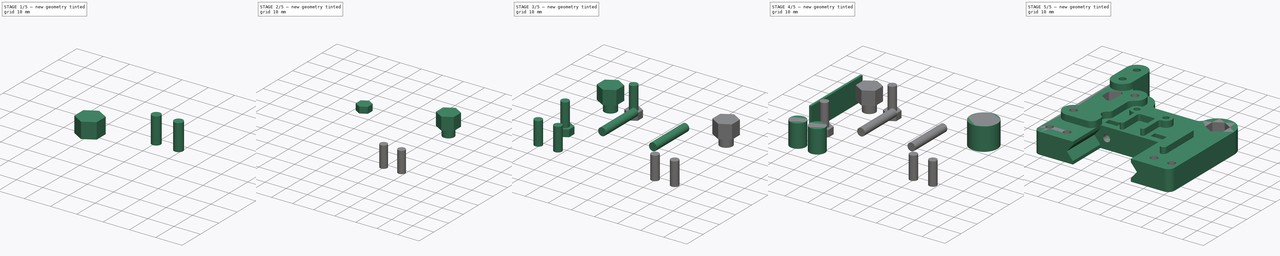
[diagram: build sequence overview — one tinted view per stage of 5, left to right]
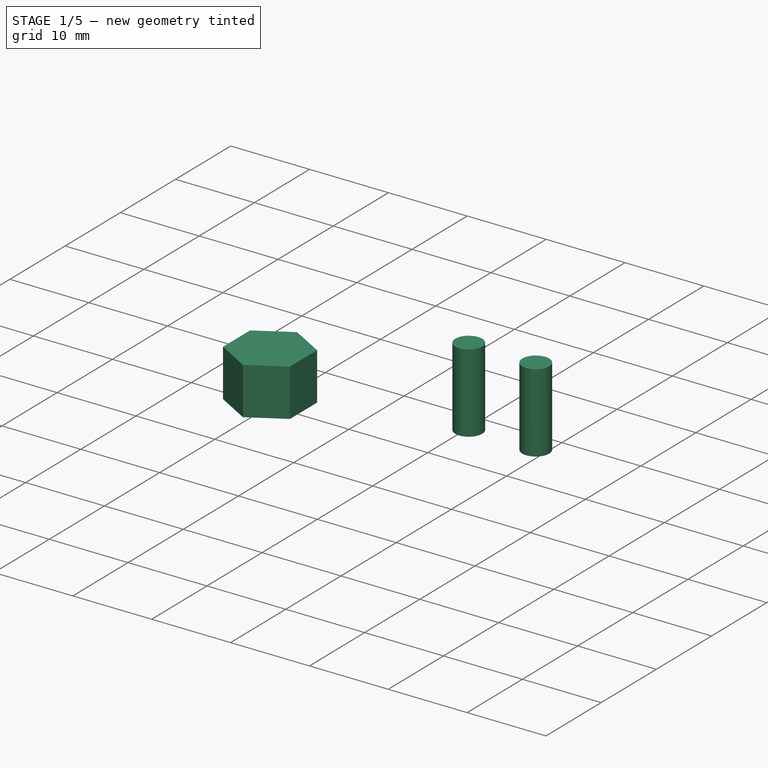
[diagram: stage 1 of 5 — iso view after this stage's code; geometry added in this stage tinted green]
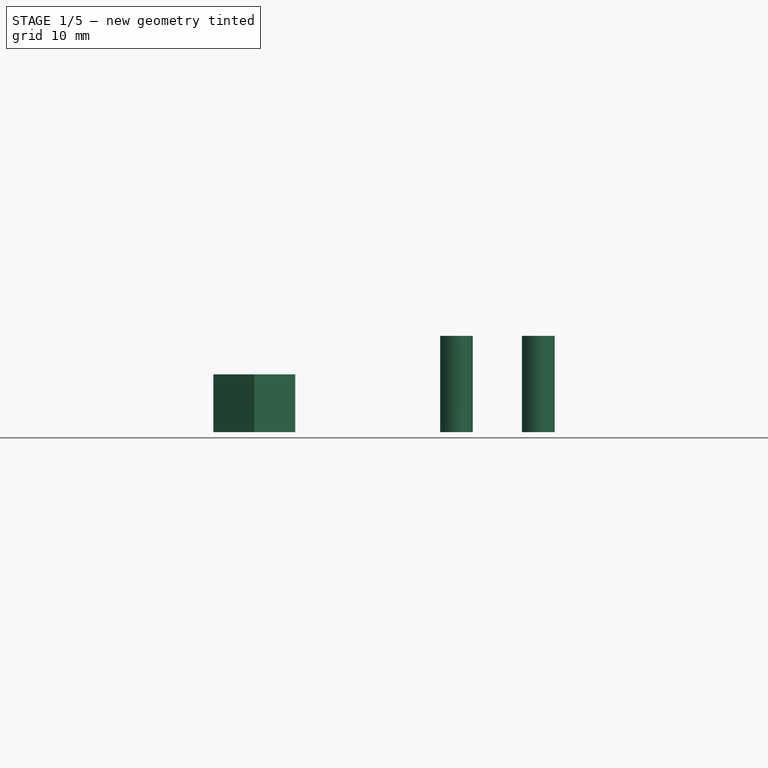
[diagram: stage 1 of 5 — front view after this stage's code; geometry added in this stage tinted green]
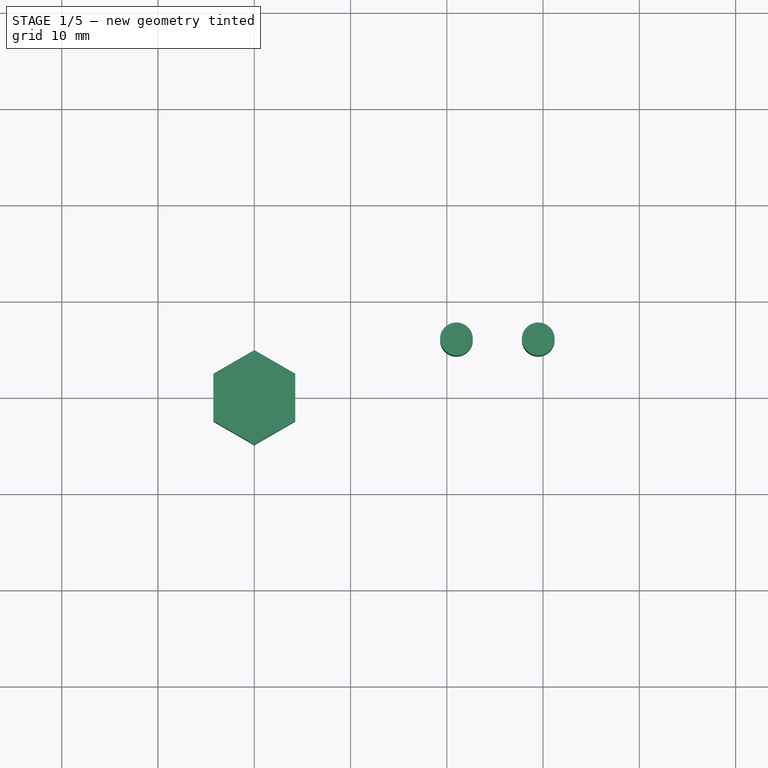
[diagram: stage 1 of 5 — top view after this stage's code; geometry added in this stage tinted green]
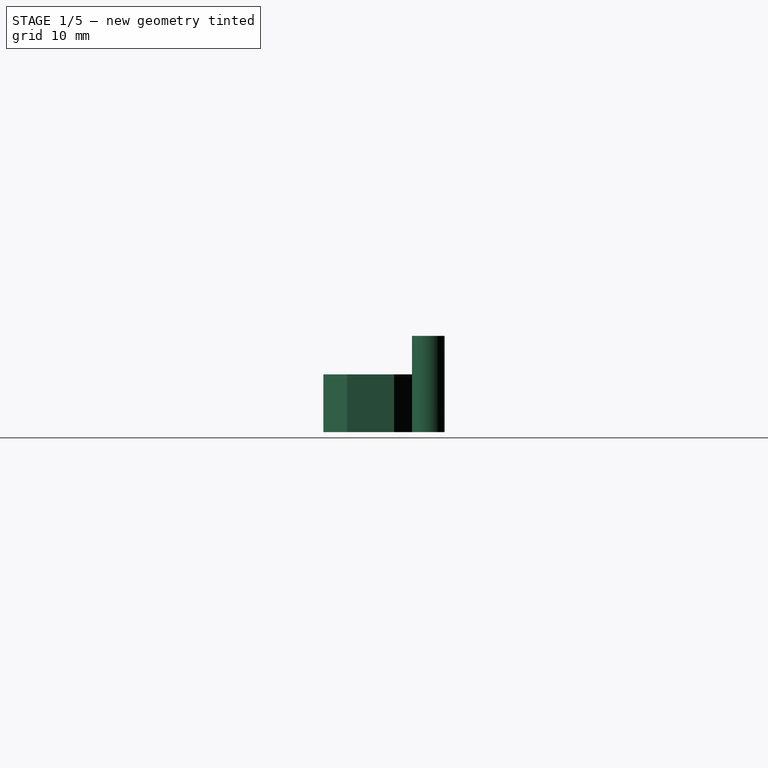
[diagram: stage 1 of 5 — right view after this stage's code; geometry added in this stage tinted green]
FCSTD DOCUMENT  (FreeCAD 0.18R14995 (Git))
Label: XCarriage
License: All rights reserved
LicenseURL: http://en.wikipedia.org/wiki/All_rights_reserved
objects: Part::Cylinder×9, Part::Mirroring×6, Part::MultiFuse×4, Sketcher::SketchObject×2, PartDesign::Pad×2, PartDesign::Body×2, Part::Feature×1, Part::Box×1, PartDesign::FeatureBase×1, Part::Cut×1, App::Part×1, Part::FeaturePython×1
note: 32 computed .brp shape members not serialized (recipe doc carries the construction recipe); baked Part::Feature solids carry a one-line shape summary decoded from their .brp

FEATURE [Sketcher::SketchObject] Sketch001  label="WN_BaseSketch"
  MapMode = 5
  Support = -> [XY_Plane002]
  sketch-geometry (7):
    g0: LineSegment StartX=4.25 StartY=-2.45374 StartZ=0 EndX=4.25 EndY=2.45374 EndZ=0
    g1: LineSegment StartX=4.25 StartY=2.45374 StartZ=0 EndX=0 EndY=4.90748 EndZ=0
    g2: LineSegment StartX=0 StartY=4.90748 StartZ=0 EndX=-4.25 EndY=2.45374 EndZ=0
    g3: LineSegment StartX=-4.25 StartY=2.45374 StartZ=0 EndX=-4.25 EndY=-2.45374 EndZ=0
    g4: LineSegment StartX=-4.25 StartY=-2.45374 StartZ=0 EndX=0 EndY=-4.90748 EndZ=0
    g5: LineSegment StartX=0 StartY=-4.90748 StartZ=0 EndX=4.25 EndY=-2.45374 EndZ=0
    g6: Circle [constr] CenterX=0 CenterY=0 CenterZ=0 NormalX=0 NormalY=0 NormalZ=1 AngleXU=0 Radius=4.90748
  constraints (16):
    c: Coincident(g0,g1)
    c: Coincident(g1,g2)
    c: Coincident(g2,g3)
    c: Coincident(g3,g4)
    c: Coincident(g4,g5)
    c: Coincident(g5,g0)
    c: Equal(g0, g1-g5) x5
    c: PointOnObject(g0,g6)
    c: PointOnObject(g1,g6)
    c: PointOnObject(g2,g6)
    c: PointOnObject(g3,g6)
    c: PointOnObject(g4,g6)
    c: PointOnObject(g5,g6)
    c: Coincident(g6,g-1)
    c: Vertical(g0)
    c: Distance(g2,g0) = 8.5
FEATURE [PartDesign::Pad] Pad001  label="WN_BasePad"
  Length = 6
  Length2 = 100
  Profile = -> Sketch001
  Type = 0
FEATURE [Part::Cylinder] Cylinder007  label="BeltClipCilinder2_I"
  Angle = 360
  AttacherType = Attacher::AttachEngine3D
  Height = 10
  Placement = pos=(-21,6,0) rot=(0,0,1;0rad)
  Radius = 1.7
FEATURE [Part::Cylinder] Cylinder008  label="BeltClipCilinder2_E"
  Angle = 360
  AttacherType = Attacher::AttachEngine3D
  Height = 10
  Placement = pos=(-29.5,6,0) rot=(0,0,1;0rad)
  Radius = 1.7
FEATURE [Part::MultiFuse] Fusion002  label="BeltClipFusion2"
  Shapes = -> [Cylinder007,Cylinder008]
FEATURE [Part::Mirroring] Part__Mirroring005  label="BeltClipFusion2_Mirror"
  Base = (0,0,0)
  Normal = (1,0,0)
  Source = -> Fusion002
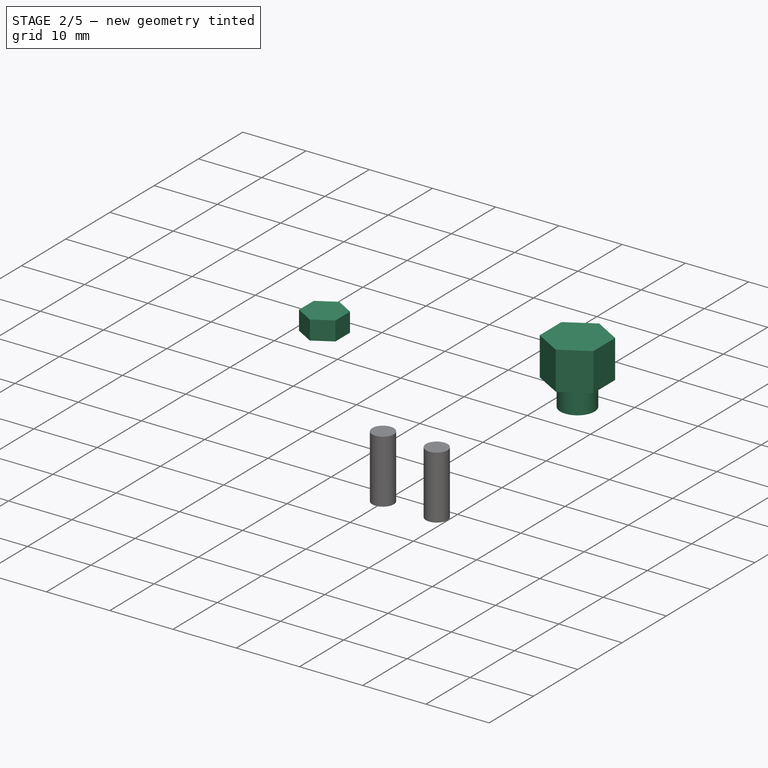
[diagram: stage 2 of 5 — iso view after this stage's code; geometry added in this stage tinted green]
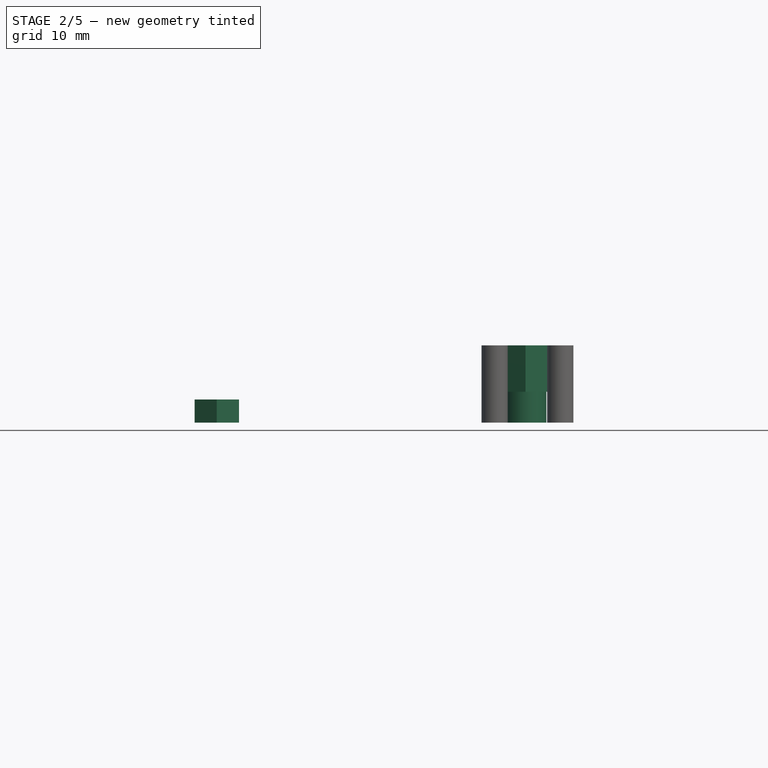
[diagram: stage 2 of 5 — front view after this stage's code; geometry added in this stage tinted green]
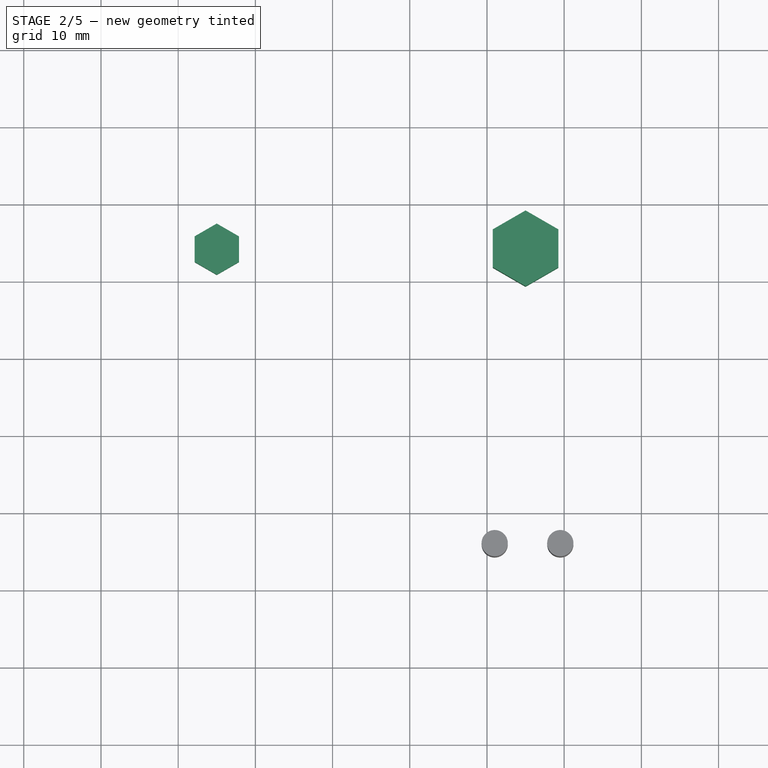
[diagram: stage 2 of 5 — top view after this stage's code; geometry added in this stage tinted green]
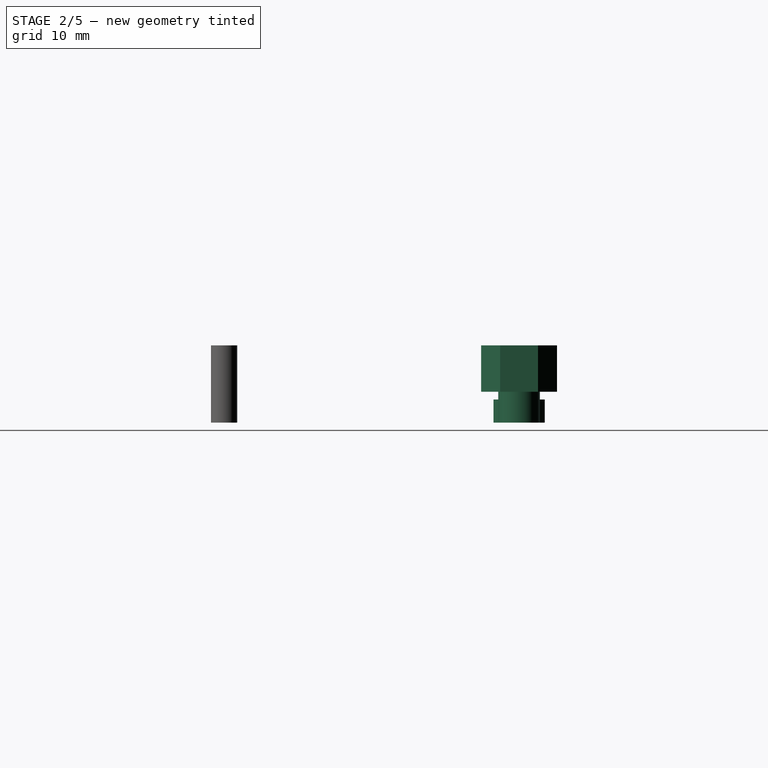
[diagram: stage 2 of 5 — right view after this stage's code; geometry added in this stage tinted green]
FEATURE [Sketcher::SketchObject] Sketch  label="SN_BaseSketch"
  MapMode = 5
  Support = -> [XY_Plane001]
  sketch-geometry (7):
    g0: LineSegment StartX=2.875 StartY=-1.65988 StartZ=0 EndX=2.875 EndY=1.65988 EndZ=0
    g1: LineSegment StartX=2.875 StartY=1.65988 StartZ=0 EndX=1.8e-11 EndY=3.31976 EndZ=0
    g2: LineSegment StartX=1.8e-11 StartY=3.31976 StartZ=0 EndX=-2.875 EndY=1.65988 EndZ=0
    g3: LineSegment StartX=-2.875 StartY=1.65988 StartZ=0 EndX=-2.875 EndY=-1.65988 EndZ=0
    g4: LineSegment StartX=-2.875 StartY=-1.65988 StartZ=0 EndX=2.5e-11 EndY=-3.31976 EndZ=0
    g5: LineSegment StartX=2.5e-11 StartY=-3.31976 StartZ=0 EndX=2.875 EndY=-1.65988 EndZ=0
    g6: Circle [constr] CenterX=0 CenterY=0 CenterZ=0 NormalX=0 NormalY=0 NormalZ=1 AngleXU=0 Radius=3.31976
  constraints (16):
    c: Coincident(g0,g1)
    c: Coincident(g1,g2)
    c: Coincident(g2,g3)
    c: Coincident(g3,g4)
    c: Coincident(g4,g5)
    c: Coincident(g5,g0)
    c: Equal(g0, g1-g5) x5
    c: PointOnObject(g0,g6)
    c: PointOnObject(g1,g6)
    c: PointOnObject(g2,g6)
    c: PointOnObject(g3,g6)
    c: PointOnObject(g4,g6)
    c: PointOnObject(g5,g6)
    c: Coincident(g6,g-1)
    c: Vertical(g0)
    c: Distance(g2,g0) = 5.75
FEATURE [PartDesign::Pad] Pad  label="SN_BasePad"
  Length = 3
  Length2 = 100
  Profile = -> Sketch
  Type = 0
FEATURE [PartDesign::Body] Body  label="ShroudNutBody"
  Group = -> [Sketch,Pad]
  Origin = -> Origin001
  Placement = pos=(-27,19,0) rot=(0,0,1;0rad)
  Tip = -> Pad
FEATURE [PartDesign::FeatureBase] Clone  label="ShroudNutClone"
  BaseFeature = -> Body
  Placement = pos=(-15,44.21,0) rot=(0,0,1;0rad)
FEATURE [Part::Cylinder] Cylinder006  label="WheelScrewCilinder"
  Angle = 360
  AttacherType = Attacher::AttachEngine3D
  Height = 10
  Placement = pos=(-25,44.2,0) rot=(0,0,1;0rad)
  Radius = 2.7
FEATURE [Part::Mirroring] Part__Mirroring003  label="WheelScrewCilinder_Mirror"
  Base = (0,0,0)
  Normal = (1,0,0)
  Source = -> Cylinder006
FEATURE [PartDesign::Body] Body001  label="WheelClipNutBody"
  Group = -> [Sketch001,Pad001]
  Origin = -> Origin002
  Placement = pos=(-25,44.2,4) rot=(0,0,1;0rad)
  Tip = -> Pad001
FEATURE [Part::Mirroring] Part__Mirroring004  label="WheelClipNutBody_Mirror"
  Base = (0,0,0)
  Normal = (1,0,0)
  Source = -> Body001
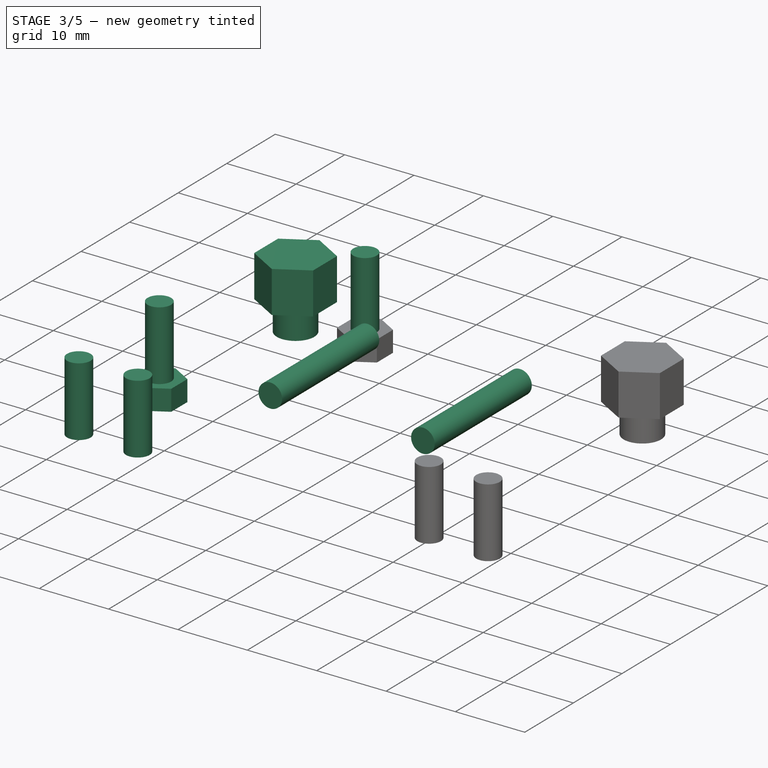
[diagram: stage 3 of 5 — iso view after this stage's code; geometry added in this stage tinted green]
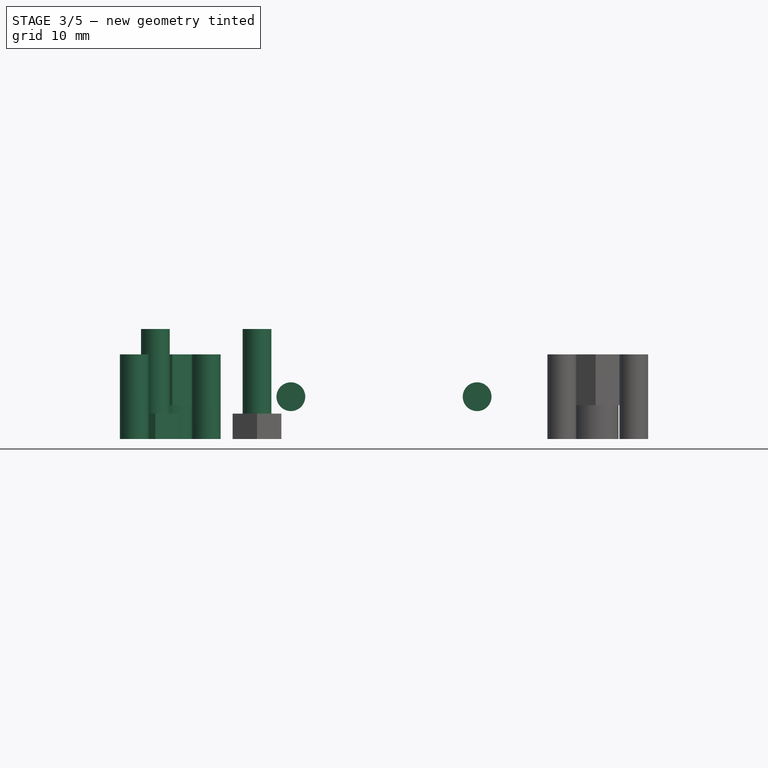
[diagram: stage 3 of 5 — front view after this stage's code; geometry added in this stage tinted green]
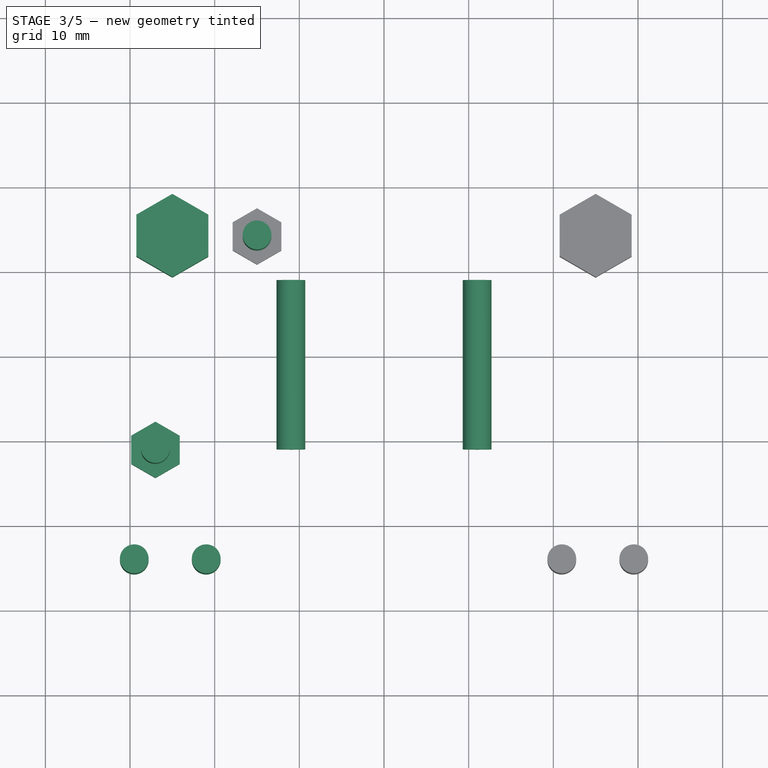
[diagram: stage 3 of 5 — top view after this stage's code; geometry added in this stage tinted green]
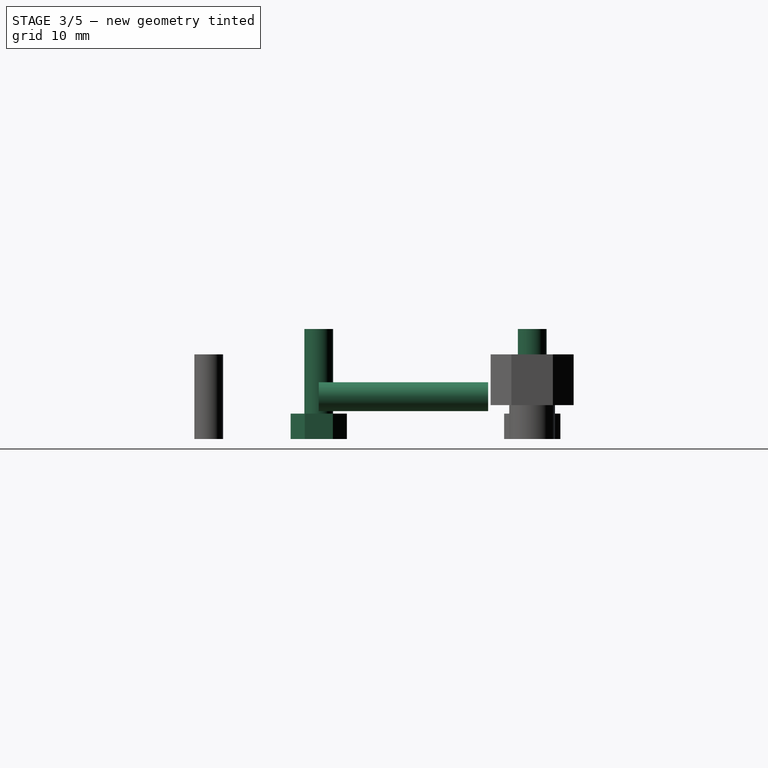
[diagram: stage 3 of 5 — right view after this stage's code; geometry added in this stage tinted green]
FEATURE [Part::Cylinder] Cylinder003  label="BottomScrewCilinder"
  Angle = 360
  AttacherType = Attacher::AttachEngine3D
  Height = 20
  Placement = pos=(-11,19,5) rot=(1,0,0;-1.5708rad)
  Radius = 1.7
FEATURE [Part::Mirroring] Part__Mirroring002  label="BottomScrewCilinder_Mirror"
  Base = (0,0,0)
  Normal = (1,0,0)
  Source = -> Cylinder003
FEATURE [Part::Cylinder] Cylinder004  label="ShroudScrewCilinder1"
  Angle = 360
  AttacherType = Attacher::AttachEngine3D
  Height = 13
  Placement = pos=(-27,19,0) rot=(0,0,1;0rad)
  Radius = 1.7
FEATURE [Part::Cylinder] Cylinder005  label="ShroudScrewCilinder2"
  Angle = 360
  AttacherType = Attacher::AttachEngine3D
  Height = 13
  Placement = pos=(-15,44.21,0) rot=(0,0,1;0rad)
  Radius = 1.7
FEATURE [Part::MultiFuse] Fusion003  label="CutsFusion"
  Shapes = -> [Fusion002,Part__Mirroring005,Body001,Part__Mirroring004,Cylinder006,Part__Mirroring003,Clone,Body,Cylinder005,Cylinder004,Cylinder003,Part__Mirroring002]
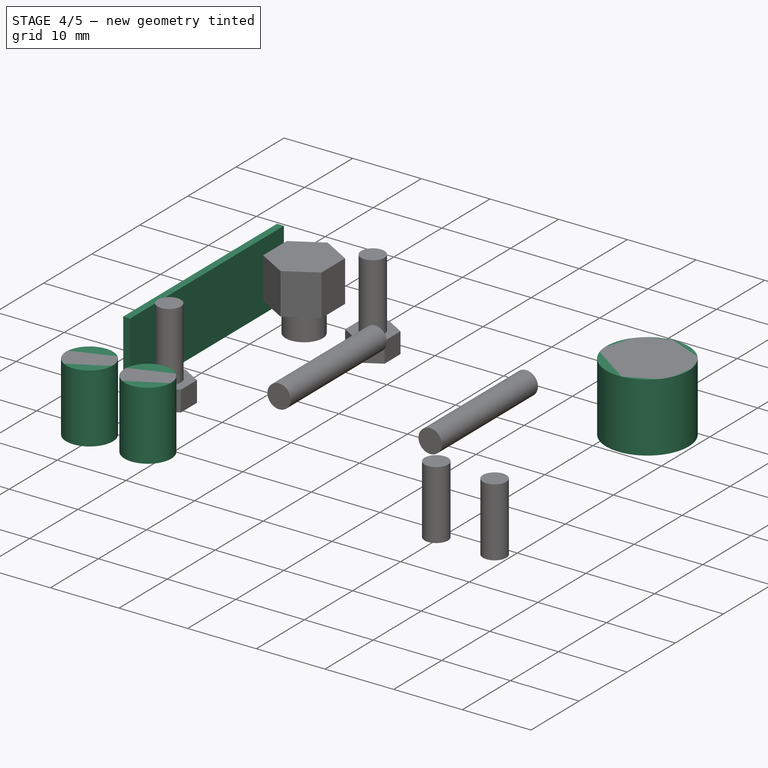
[diagram: stage 4 of 5 — iso view after this stage's code; geometry added in this stage tinted green]
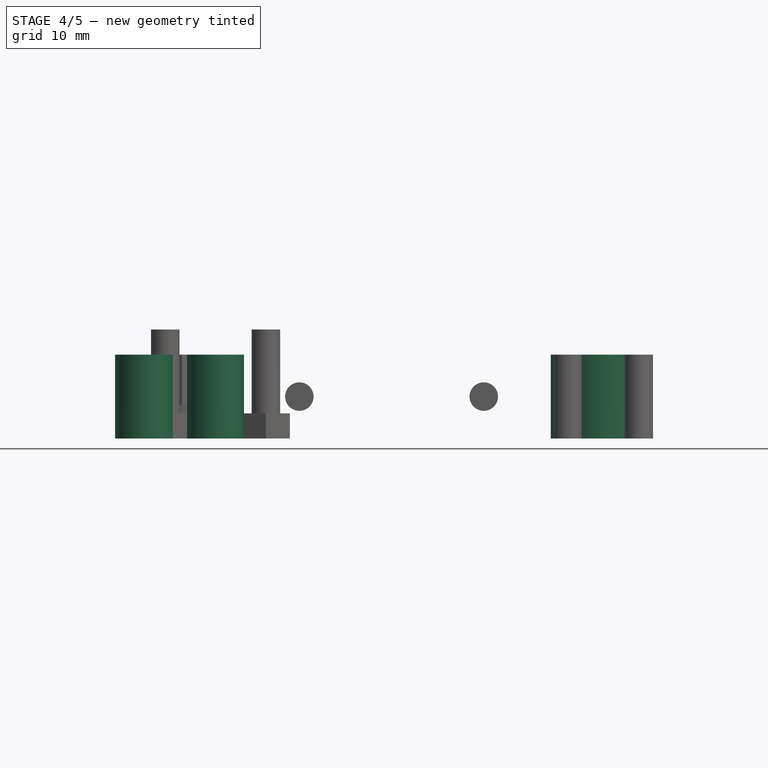
[diagram: stage 4 of 5 — front view after this stage's code; geometry added in this stage tinted green]
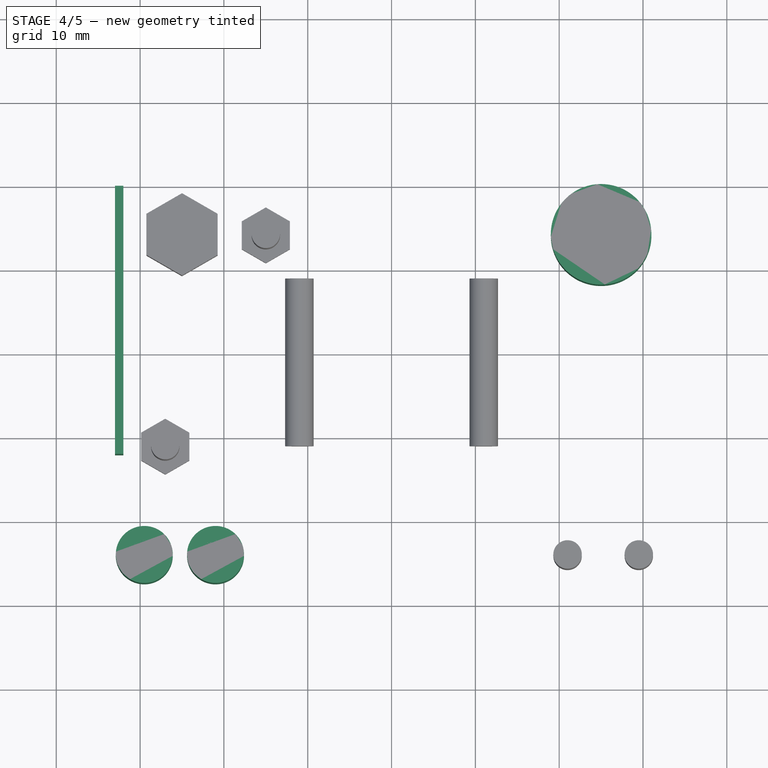
[diagram: stage 4 of 5 — top view after this stage's code; geometry added in this stage tinted green]
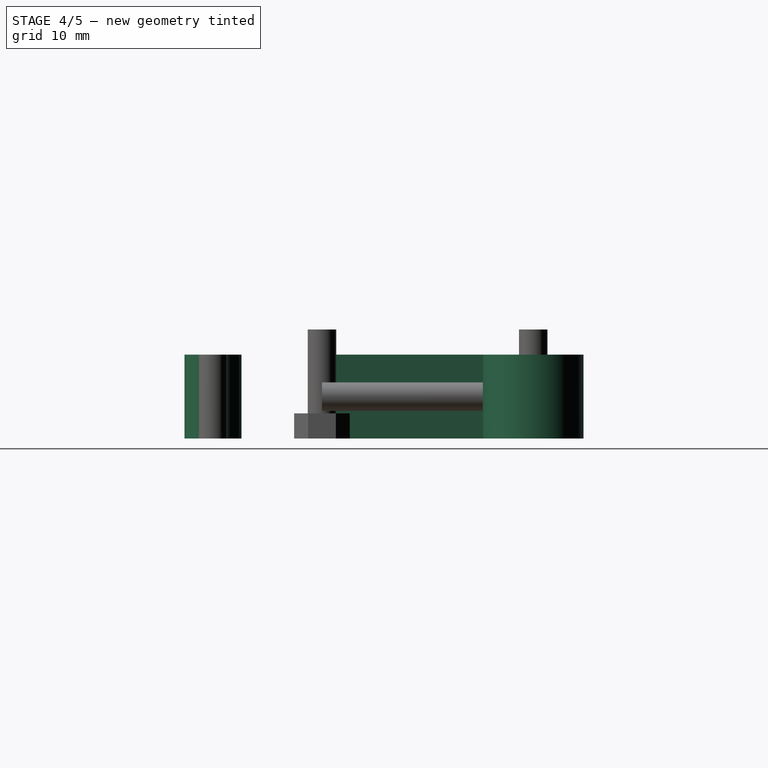
[diagram: stage 4 of 5 — right view after this stage's code; geometry added in this stage tinted green]
FEATURE [Part::Feature] E10_Carriage_nystao_with_BLtouch_V1_0001001_solid  label="BaseFeature"
  Placement = pos=(-33,0,0) rot=(0,0,1;0rad)
  shape: bbox 66 x 69.19 x 13 mm, 1855 faces (baked)
FEATURE [Part::Cylinder] Cylinder  label="BeltClipCilinder_I"
  Angle = 360
  AttacherType = Attacher::AttachEngine3D
  Height = 10
  Placement = pos=(-21,6,0) rot=(0,0,1;0rad)
  Radius = 3.4
FEATURE [Part::Cylinder] Cylinder001  label="BeltClipCilinder_E"
  Angle = 360
  AttacherType = Attacher::AttachEngine3D
  Height = 10
  Placement = pos=(-29.5,6,0) rot=(0,0,1;0rad)
  Radius = 3.4
FEATURE [Part::Cylinder] Cylinder002  label="WheelsClipCilinder"
  Angle = 360
  AttacherType = Attacher::AttachEngine3D
  Height = 10
  Placement = pos=(-25,44.2,0) rot=(0,0,1;0rad)
  Radius = 6
FEATURE [Part::Mirroring] Part__Mirroring001  label="WheelsClipCilinder_Mirror"
  Base = (0,0,0)
  Normal = (1,0,0)
  Source = -> Cylinder002
FEATURE [Part::Box] Box  label="TextRemovalCube"
  AttacherType = Attacher::AttachEngine3D
  Height = 10
  Length = 1
  Placement = pos=(-33,18,0) rot=(0,0,1;0rad)
  Width = 32
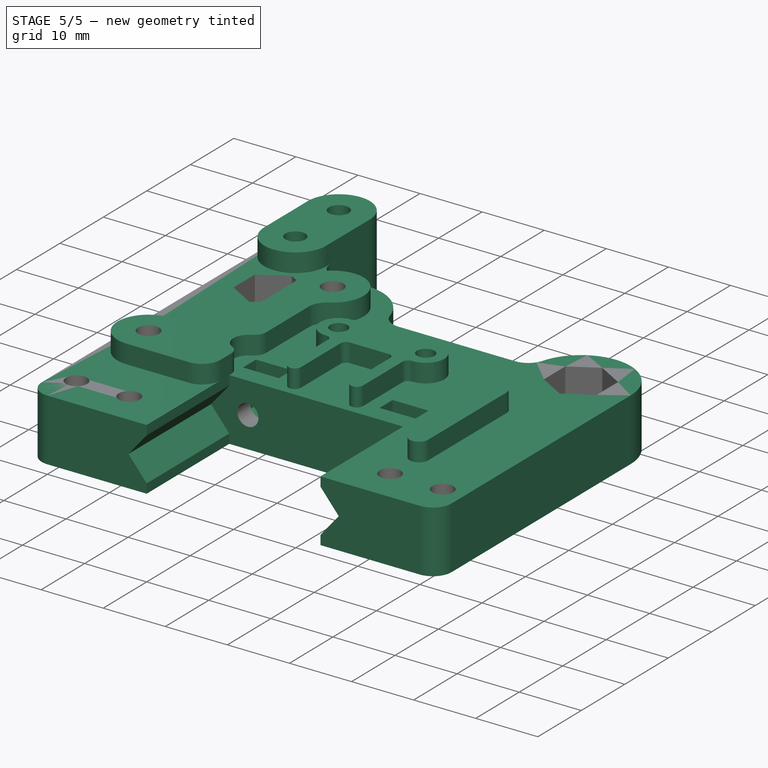
[diagram: stage 5 of 5 — iso view after this stage's code; geometry added in this stage tinted green]
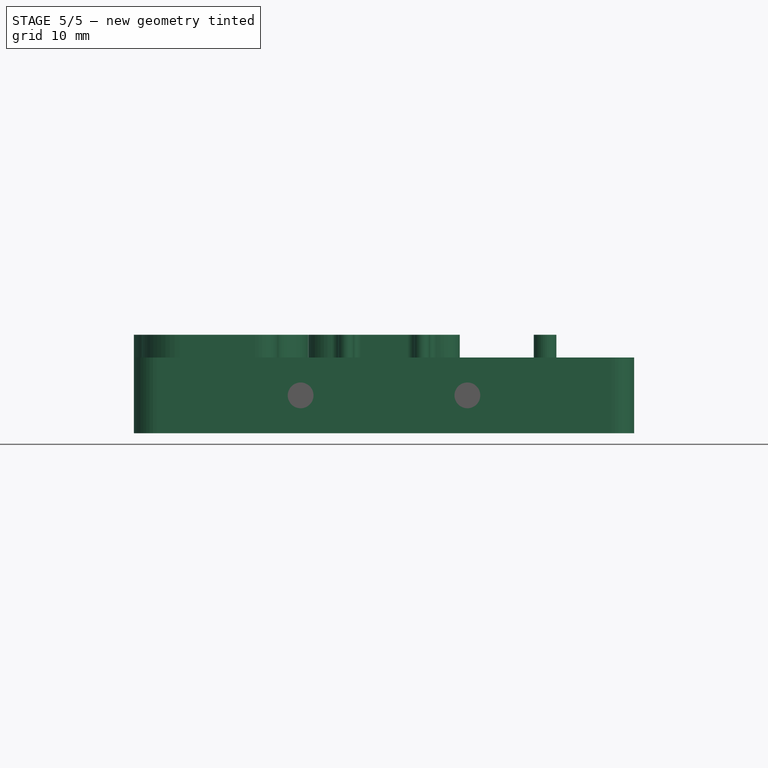
[diagram: stage 5 of 5 — front view after this stage's code; geometry added in this stage tinted green]
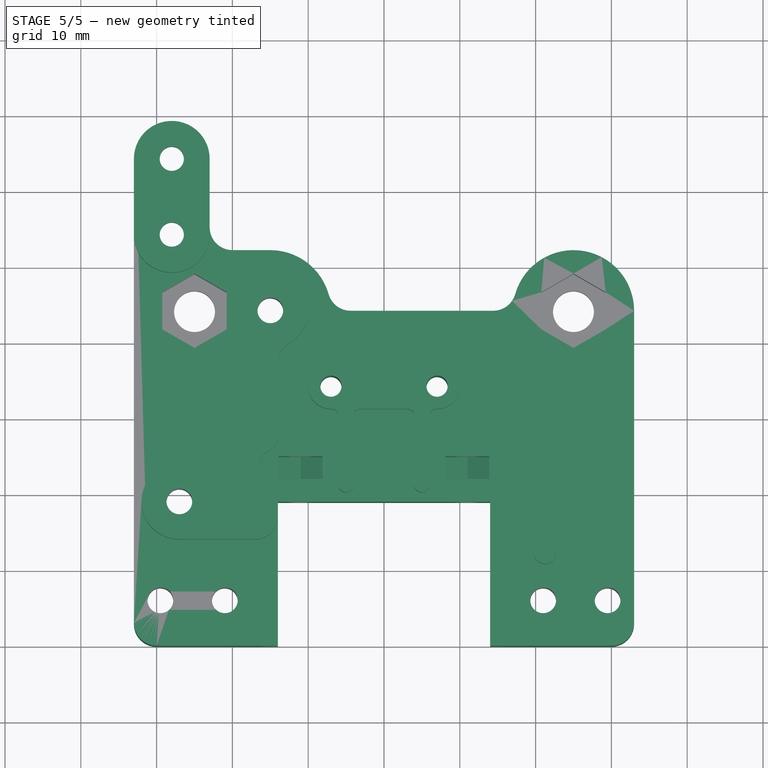
[diagram: stage 5 of 5 — top view after this stage's code; geometry added in this stage tinted green]
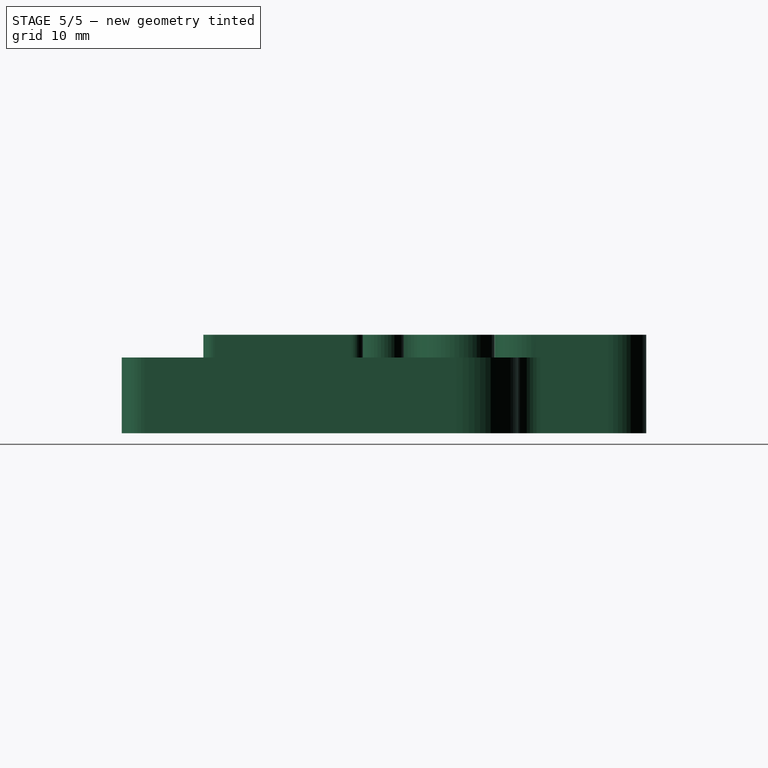
[diagram: stage 5 of 5 — right view after this stage's code; geometry added in this stage tinted green]
FEATURE [Part::MultiFuse] Fusion  label="BeltClipFusion"
  Shapes = -> [Cylinder,Cylinder001]
FEATURE [Part::Mirroring] Part__Mirroring  label="BeltClipFusion_Mirror"
  Base = (0,0,0)
  Normal = (1,0,0)
  Source = -> Fusion
FEATURE [Part::MultiFuse] Fusion001  label="CarriagePrepareFusion"
  Shapes = -> [E10_Carriage_nystao_with_BLtouch_V1_0001001_solid,Fusion,Part__Mirroring,Cylinder002,Part__Mirroring001,Box]
FEATURE [Part::Cut] Cut  label="CarriageCut"
  Base = -> Fusion001
  Tool = -> Fusion003
FEATURE [App::Part] Part  label="CarriagePart"
  Group = -> [E10_Carriage_nystao_with_BLtouch_V1_0001001_solid,Cylinder,Cylinder001,Fusion,Part__Mirroring,Cylinder002,Part__Mirroring001,Fusion001,Cylinder003,Part__Mirroring002,Cylinder004,Cylinder005,Body,Clone,Cylinder006,Part__Mirroring003,Body001,Part__Mirroring004,Cylinder007,Cylinder008,Fusion002,Part__Mirroring005,Fusion003,Box,Cut]
  License = CC BY 3.0
  LicenseURL = http://creativecommons.org/licenses/by/3.0/
  Origin = -> Origin
FEATURE [Part::FeaturePython] refine  label="Carriage_Refined"  # WARN: FeaturePython — macro-defined, semantics opaque (R4)
  Base = -> Cut
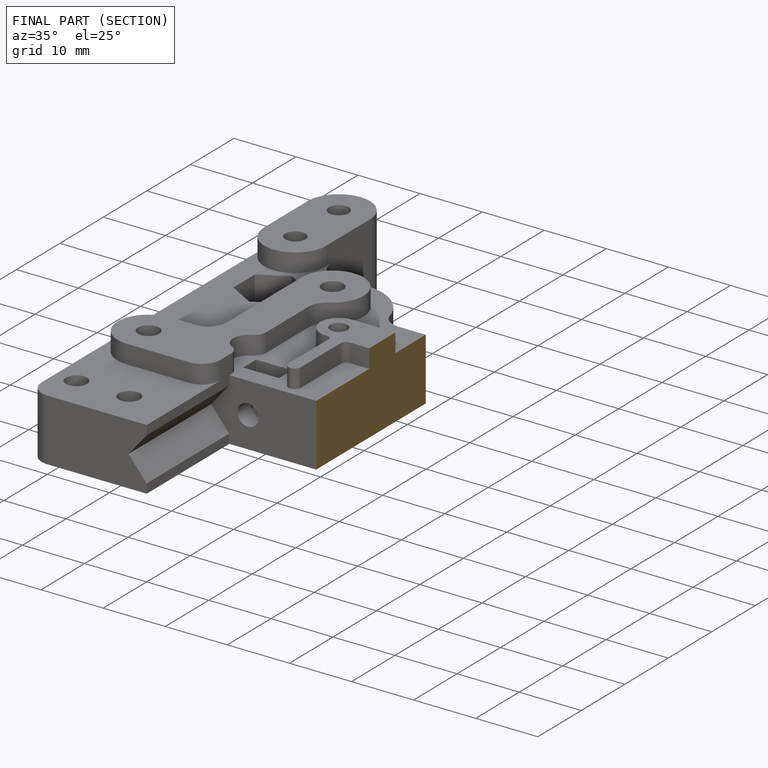
[diagram: finished part — half-section view (interior)]
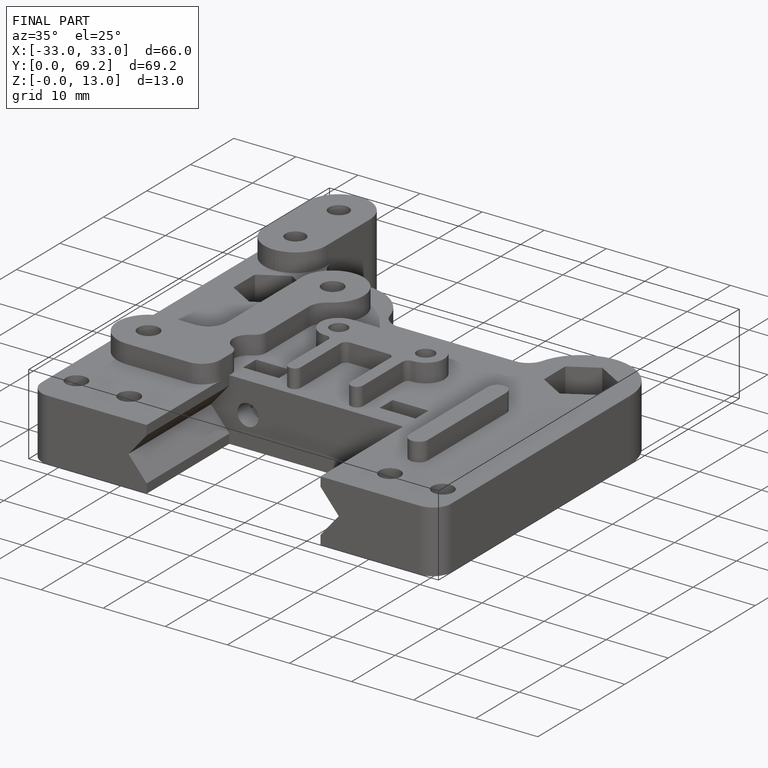
[diagram: finished part — iso view with bounding-box wireframe]
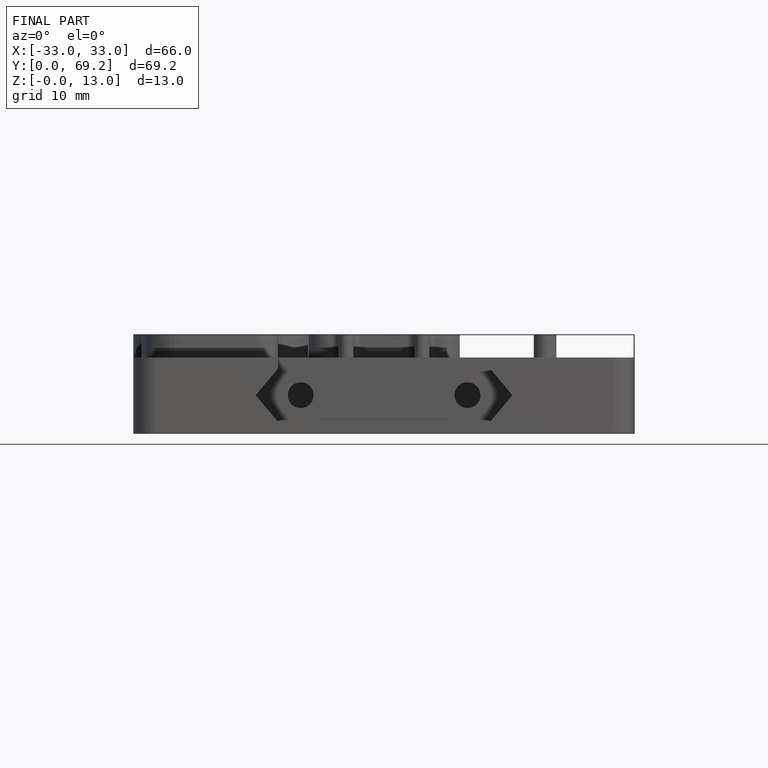
[diagram: finished part — front view with bounding-box wireframe]
